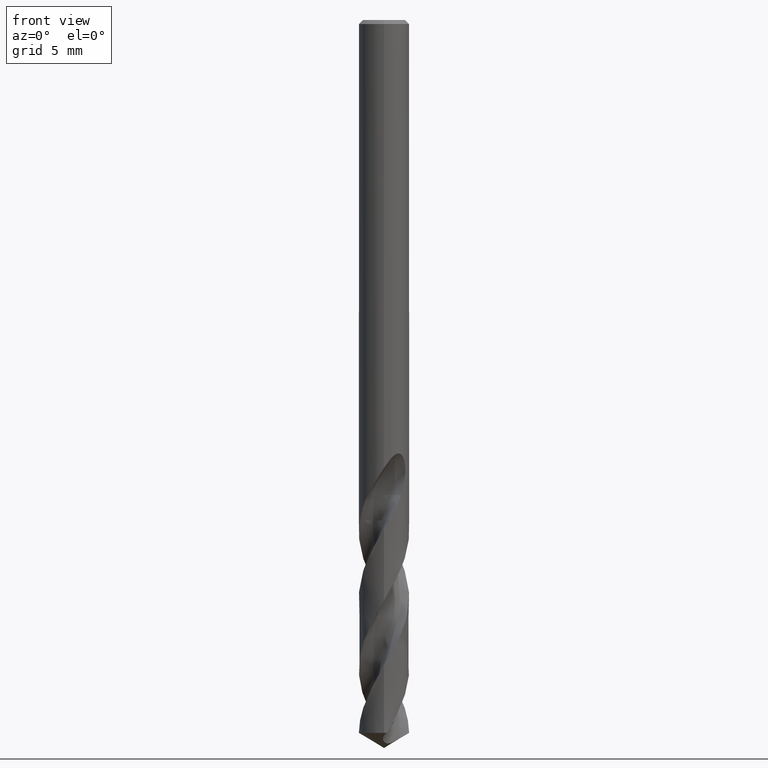
[diagram: clean part render]
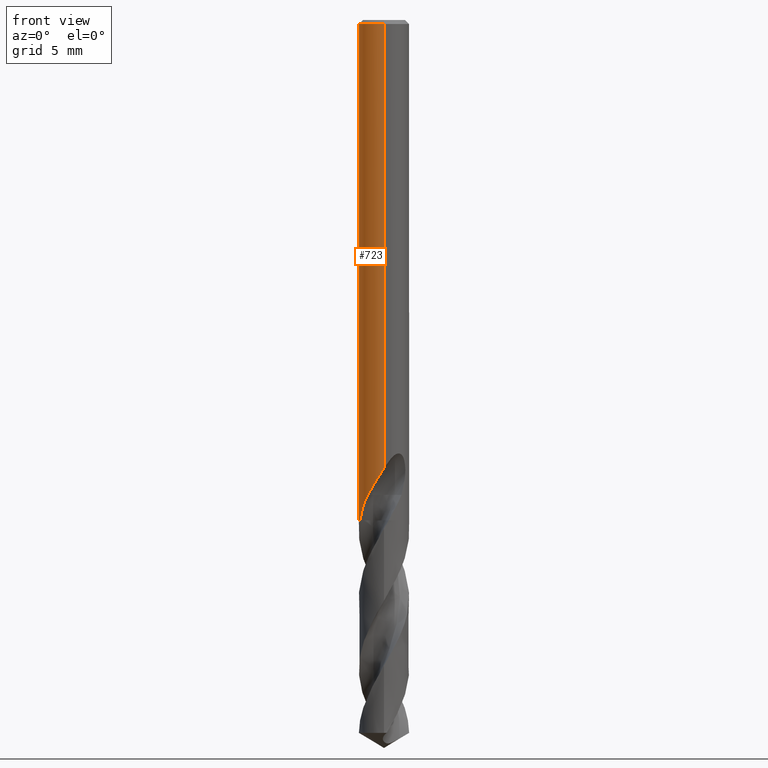
[diagram: same view with one face highlighted and labeled with its STEP entity id]
A machine part, front view. The second image highlights one B-rep face of the part: STEP entity #723.
In plain terms, the highlighted cylindrical surface (edge-blend (fillet) strip) has radius 1.9 mm, axis along (-0, -0, 1).
Its self-contained STEP definition (entity closure, byte-faithful):
#287=VERTEX_POINT('',#802);
#291=EDGE_CURVE('',#637,#747,#806,.T.);
#313=EDGE_CURVE('',#317,#637,#832,.T.);
#317=VERTEX_POINT('',#836);
#331=EDGE_CURVE('',#317,#605,#852,.T.);
#361=EDGE_CURVE('',#757,#449,#885,.T.);
#391=EDGE_CURVE('',#747,#757,#918,.T.);
#393=VERTEX_POINT('',#920);
#425=EDGE_CURVE('',#449,#651,#953,.T.);
#439=EDGE_CURVE('',#693,#597,#969,.T.);
#449=VERTEX_POINT('',#981);
#455=EDGE_CURVE('',#567,#563,#987,.T.);
#485=EDGE_CURVE('',#489,#605,#1018,.T.);
#489=VERTEX_POINT('',#1022);
#505=EDGE_CURVE('',#599,#287,#1043,.T.);
#511=EDGE_CURVE('',#651,#599,#1051,.T.);
#513=EDGE_CURVE('',#683,#693,#1053,.T.);
#531=EDGE_CURVE('',#597,#393,#1072,.T.);
#563=VERTEX_POINT('',#1105);
#567=VERTEX_POINT('',#1110);
#579=VERTEX_POINT('',#1124);
#597=VERTEX_POINT('',#1144);
#599=VERTEX_POINT('',#1146);
#605=VERTEX_POINT('',#1153);
#637=VERTEX_POINT('',#1189);
#651=VERTEX_POINT('',#1205);
#683=VERTEX_POINT('',#1237);
#687=EDGE_CURVE('',#287,#579,#1242,.T.);
#693=VERTEX_POINT('',#1249);
#697=EDGE_CURVE('',#393,#489,#1253,.T.);
#723=ADVANCED_FACE('',(#1280),#1281,.T.);
#737=EDGE_CURVE('',#563,#683,#1295,.T.);
#747=VERTEX_POINT('',#1305);
#757=VERTEX_POINT('',#1316);
#767=EDGE_CURVE('',#579,#567,#1327,.T.);
#802=CARTESIAN_POINT('',(-0.562333990228013,1.81487753951451,-23.3171221986971));
#806=B_SPLINE_CURVE_WITH_KNOTS('',3,(#1364,#1365,#1366,#1367,#1368,#1369,#1370,#1371,#1372,#1373,#1374,#1375,#1376,#1377,#1378,#1379,#1380,#1381,#1382,#1383,#1384,#1385,#1386,#1387,#1388,#1389,#1390,#1391),.UNSPECIFIED.,.F.,.F.,(4,2,2,2,2,2,2,2,2,2,2,2,2,4),(0.0,0.930896725868809,1.43918709684327,1.89957042393618,2.43442537099134,3.07690815496934,3.63375908794898,3.88610448691811,4.0705382262428,4.2450664905385,4.46646600120747,4.79038246894414,5.25086781089681,5.77450983232083),.UNSPECIFIED.);
#832=B_SPLINE_CURVE_WITH_KNOTS('',3,(#2037,#2038,#2039,#2040,#2041,#2042,#2043,#2044),.UNSPECIFIED.,.F.,.F.,(4,2,2,4),(0.0,1.30385603521237,2.26941360860562,3.92841264680964),.UNSPECIFIED.);
#836=CARTESIAN_POINT('',(-1.83032600056677,-0.509810486013441,-37.8));
#852=CIRCLE('',#2180,1.9);
#885=CIRCLE('',#2342,1.9);
#918=LINE('',#2411,#2412);
#920=CARTESIAN_POINT('',(-1.54592011029632,1.10459540673562,-34.8373975703887));
#953=LINE('',#3045,#3046);
#969=LINE('',#3066,#3067);
#981=CARTESIAN_POINT('',(0.0,1.9,-0.300000000000001));
#987=LINE('',#3125,#3126);
#1018=B_SPLINE_CURVE_WITH_KNOTS('',3,(#3327,#3328,#3329,#3330,#3331,#3332,#3333,#3334),.UNSPECIFIED.,.F.,.F.,(4,2,2,4),(0.0,0.4862241962314,0.933529852788994,2.02744134513229),.UNSPECIFIED.);
#1022=CARTESIAN_POINT('',(-1.32064695167187,1.36597643795191,-35.8778));
#1043=B_SPLINE_CURVE_WITH_KNOTS('',3,(#3767,#3768,#3769,#3770,#3771,#3772,#3773,#3774,#3775,#3776,#3777,#3778,#3779,#3780,#3781,#3782,#3783,#3784,#3785,#3786,#3787,#3788,#3789,#3790,#3791,#3792,#3793),.UNSPECIFIED.,.F.,.F.,(4,2,3,2,2,2,2,2,2,2,2,2,4),(-0.549097402110366,-0.274548701055183,0.0,0.274548701055183,0.549097402110365,0.827390658279231,1.1056839144481,1.37693201723175,1.64818012001541,1.92148865262143,2.19479718522745,2.46810571783348,2.7414142504395),.UNSPECIFIED.);
#1051=B_SPLINE_CURVE_WITH_KNOTS('',3,(#4208,#4209,#4210,#4211,#4212,#4213,#4214,#4215,#4216,#4217,#4218,#4219,#4220,#4221,#4222,#4223,#4224,#4225,#4226,#4227,#4228,#4229,#4230,#4231,#4232,#4233,#4234),.UNSPECIFIED.,.F.,.F.,(4,2,3,2,2,2,2,2,2,2,2,2,4),(-0.549097402110366,-0.274548701055183,0.0,0.274548701055183,0.549097402110365,0.827390658279231,1.1056839144481,1.37693201723175,1.64818012001541,1.92148865262143,2.19479718522745,2.46810571783348,2.7414142504395),.UNSPECIFIED.);
#1053=B_SPLINE_CURVE_WITH_KNOTS('',3,(#4237,#4238,#4239,#4240,#4241,#4242,#4243,#4244,#4245,#4246,#4247,#4248,#4249,#4250),.UNSPECIFIED.,.F.,.F.,(4,2,2,2,2,2,4),(6.40705677458947,6.75384675428594,7.08293395514204,7.41202115599814,7.74110835685424,8.07019555771033,8.394801163274),.UNSPECIFIED.);
#1072=B_SPLINE_CURVE_WITH_KNOTS('',3,(#4301,#4302,#4303,#4304,#4305,#4306,#4307,#4308,#4309,#4310,#4311,#4312,#4313,#4314,#4315,#4316,#4317,#4318,#4319,#4320,#4321,#4322,#4323,#4324,#4325,#4326,#4327,#4328),.UNSPECIFIED.,.F.,.F.,(4,2,2,2,2,2,2,2,2,2,2,2,2,4),(0.0,0.930896725868812,1.43918709684323,1.8995704239361,2.43442537099121,3.07690815496917,3.63375908794876,3.88610448691797,4.07053822624273,4.2450664905385,4.46646600120753,4.79038246894432,5.25086781089762,5.77450983232273),.UNSPECIFIED.);
#1105=CARTESIAN_POINT('',(-1.46310310737324E-015,1.9,-24.7128911336578));
#1110=CARTESIAN_POINT('',(0.0,1.9,-24.5000801551881));
#1124=CARTESIAN_POINT('',(-1.0350734039088,1.59330569838956,-23.3171221986971));
#1144=CARTESIAN_POINT('',(-5.63221455693493E-013,1.9,-33.8581361608634));
#1146=CARTESIAN_POINT('',(-0.486378944383046,1.83669146087764,-23.6432837483006));
#1153=CARTESIAN_POINT('',(-0.35339459976422,1.86684553642166,-37.8));
#1189=CARTESIAN_POINT('',(-1.21071203354284,-1.46430064257124,-35.8778));
#1205=CARTESIAN_POINT('',(-2.60338784749601E-016,1.9,-24.0232688117743));
#1237=CARTESIAN_POINT('',(-1.337052752443,1.34992219671528,-25.3720803908795));
#1242=CIRCLE('',#6527,1.9);
#1249=CARTESIAN_POINT('',(-1.44945831354929E-017,1.9,-26.0310253601033));
#1253=B_SPLINE_CURVE_WITH_KNOTS('',3,(#6946,#6947,#6948,#6949),.UNSPECIFIED.,.F.,.F.,(4,4),(0.0,1.09196780730593),.UNSPECIFIED.);
#1280=FACE_OUTER_BOUND('',#7012,.T.);
#1281=CYLINDRICAL_SURFACE('',#7013,1.9);
#1295=ELLIPSE('',#7031,2.11836402088143,1.9);
#1305=CARTESIAN_POINT('',(5.6355452260088E-013,-1.9,-33.8581361608634));
#1316=CARTESIAN_POINT('',(2.32675207226252E-016,-1.9,-0.300000000000001));
#1327=B_SPLINE_CURVE_WITH_KNOTS('',3,(#7203,#7204,#7205,#7206,#7207,#7208,#7209,#7210,#7211,#7212,#7213,#7214,#7215,#7216,#7217,#7218,#7219,#7220,#7221,#7222),.UNSPECIFIED.,.F.,.F.,(4,2,2,2,2,2,2,2,2,4),(3.47070982957983,3.70059776713904,3.93048570469824,4.16037364225744,4.62014951737584,5.07145175045712,5.29710286699776,5.52275398353839,5.75855614826625,5.99435831299411),.UNSPECIFIED.);
#1364=CARTESIAN_POINT('',(-1.21071203354284,-1.46430064257124,-35.8778));
#1365=CARTESIAN_POINT('',(-1.0853808733013,-1.56792686485841,-35.6135290802612));
#1366=CARTESIAN_POINT('',(-0.941278308818906,-1.66004339814314,-35.36714351895));
#1367=CARTESIAN_POINT('',(-0.690006337884158,-1.77295146389738,-34.9555394209279));
#1368=CARTESIAN_POINT('',(-0.599587009473506,-1.80543079791102,-34.810723447385));
#1369=CARTESIAN_POINT('',(-0.424546600169902,-1.85397230287446,-34.5303971486895));
#1370=CARTESIAN_POINT('',(-0.340707086095919,-1.87112190445772,-34.3961934997419));
#1371=CARTESIAN_POINT('',(-0.159229834318965,-1.89587303984936,-34.1069488917868));
#1372=CARTESIAN_POINT('',(-0.0600762303288743,-1.90168393949035,-33.9496438769895));
#1373=CARTESIAN_POINT('',(0.160118456058105,-1.89705228779978,-33.6131166077026));
#1374=CARTESIAN_POINT('',(0.290671617676792,-1.88272651539859,-33.421628927856));
#1375=CARTESIAN_POINT('',(0.542426530797424,-1.82487212056621,-33.1058789172795));
#1376=CARTESIAN_POINT('',(0.681712501963189,-1.78079434988088,-32.951805206737));
#1377=CARTESIAN_POINT('',(0.892520378424017,-1.67890993681827,-32.8075307994537));
#1378=CARTESIAN_POINT('',(0.96229911801962,-1.64044626239386,-32.7718748476525));
#1379=CARTESIAN_POINT('',(1.08456752146185,-1.56124860066155,-32.7444846669144));
#1380=CARTESIAN_POINT('',(1.13471666348301,-1.5251813870785,-32.7439732162605));
#1381=CARTESIAN_POINT('',(1.22812215179518,-1.45089044992675,-32.767945289558));
#1382=CARTESIAN_POINT('',(1.26897305300971,-1.41500940735062,-32.7904212478785));
#1383=CARTESIAN_POINT('',(1.35210418437972,-1.33637889976646,-32.8607459460686));
#1384=CARTESIAN_POINT('',(1.39056440872162,-1.29563059277343,-32.9126680904723));
#1385=CARTESIAN_POINT('',(1.46934338524981,-1.20665367368141,-33.054847054154));
#1386=CARTESIAN_POINT('',(1.50699816538277,-1.15819937106817,-33.1603018334784));
#1387=CARTESIAN_POINT('',(1.57780658952891,-1.06090372748162,-33.4553525677251));
#1388=CARTESIAN_POINT('',(1.60340547576235,-1.01946044813557,-33.6654837368289));
#1389=CARTESIAN_POINT('',(1.61977323562939,-0.993279704172422,-34.1678680838827));
#1390=CARTESIAN_POINT('',(1.60817560749201,-1.01746664945086,-34.4833068082755));
#1391=CARTESIAN_POINT('',(1.54592011029632,-1.10459540673561,-34.8373975703887));
#2037=CARTESIAN_POINT('',(-1.83032600056676,-0.509810486013441,-37.8));
#2038=CARTESIAN_POINT('',(-1.77205415854653,-0.719018555436586,-37.423529852799));
#2039=CARTESIAN_POINT('',(-1.68683808537791,-0.887829493786616,-37.1098006372953));
#2040=CARTESIAN_POINT('',(-1.54341905935712,-1.11392768999328,-36.6327647913459));
#2041=CARTESIAN_POINT('',(-1.48961362873666,-1.18083139570048,-36.4596483001508));
#2042=CARTESIAN_POINT('',(-1.38877811686685,-1.30041203939709,-36.1856781877291));
#2043=CARTESIAN_POINT('',(-1.3103128756953,-1.38194874389746,-36.0284764723504));
#2044=CARTESIAN_POINT('',(-1.21071203354284,-1.46430064257124,-35.8778));
#2180=AXIS2_PLACEMENT_3D('',#7285,#7286,#7287);
#2342=AXIS2_PLACEMENT_3D('',#7333,#7334,#7335);
#2411=CARTESIAN_POINT('',(2.32675207226252E-016,-1.9,-32.9));
#2412=VECTOR('',#7370,1.0);
#3045=CARTESIAN_POINT('',(-2.32675207226252E-016,1.9,-32.9));
#3046=VECTOR('',#7382,1.0);
#3066=CARTESIAN_POINT('',(-2.32675207226252E-016,1.9,-32.9));
#3067=VECTOR('',#7404,1.0);
#3125=CARTESIAN_POINT('',(-2.32675207226252E-016,1.9,-32.9));
#3126=VECTOR('',#7423,1.0);
#3327=CARTESIAN_POINT('',(-1.32064695167187,1.36597643795191,-35.8778));
#3328=CARTESIAN_POINT('',(-1.26541319141828,1.41937728373637,-36.0205087950185));
#3329=CARTESIAN_POINT('',(-1.20572662188453,1.47087521716798,-36.162501428871));
#3330=CARTESIAN_POINT('',(-1.07477892226321,1.56875320026051,-36.4417115320769));
#3331=CARTESIAN_POINT('',(-1.00871331921797,1.61233955610013,-36.5737704974233));
#3332=CARTESIAN_POINT('',(-0.755249808180064,1.75565049954433,-37.0770777025118));
#3333=CARTESIAN_POINT('',(-0.558823715376891,1.82795772343687,-37.4375719386837));
#3334=CARTESIAN_POINT('',(-0.35339459976425,1.86684553642166,-37.8));
#3767=CARTESIAN_POINT('',(0.666833593881052,1.77913826277546,-22.815314810961));
#3768=CARTESIAN_POINT('',(0.729156436544056,1.75577922091605,-22.8781275443334));
#3769=CARTESIAN_POINT('',(0.783736551744207,1.7313004169092,-22.9576861473125));
#3770=CARTESIAN_POINT('',(0.856885769825975,1.6962874226608,-23.1336179658344));
#3771=CARTESIAN_POINT('',(0.875400981188567,1.68631940098372,-23.2301257789017));
#3772=CARTESIAN_POINT('',(0.875400981188567,1.68631940098372,-23.3216420125868));
#3773=CARTESIAN_POINT('',(0.875400981188567,1.68631940098372,-23.4131582462718));
#3774=CARTESIAN_POINT('',(0.856885769825974,1.6962874226608,-23.5096660593391));
#3775=CARTESIAN_POINT('',(0.783736551744204,1.7313004169092,-23.685597877861));
#3776=CARTESIAN_POINT('',(0.729156436544057,1.75577922091605,-23.7651564808402));
#3777=CARTESIAN_POINT('',(0.603660733285726,1.8028158973629,-23.8916386471106));
#3778=CARTESIAN_POINT('',(0.523577862471086,1.82870417591542,-23.9471807096717));
#3779=CARTESIAN_POINT('',(0.346284885324924,1.87039555239642,-24.021654283086));
#3780=CARTESIAN_POINT('',(0.248975484923823,1.88589937305466,-24.0405166027747));
#3781=CARTESIAN_POINT('',(0.0664176989110847,1.90099020211123,-24.0405166027747));
#3782=CARTESIAN_POINT('',(-0.0297945902976769,1.9018278025641,-24.0225029728444));
#3783=CARTESIAN_POINT('',(-0.206502322805989,1.89081820897688,-23.9494411360825));
#3784=CARTESIAN_POINT('',(-0.287028841281158,1.87930641775675,-23.8944179367881));
#3785=CARTESIAN_POINT('',(-0.414569437604323,1.85536359392417,-23.7674957530888));
#3786=CARTESIAN_POINT('',(-0.470086990040862,1.84132785703124,-23.6868331760455));
#3787=CARTESIAN_POINT('',(-0.543989558938117,1.82086393925848,-23.5094883203028));
#3788=CARTESIAN_POINT('',(-0.562348199187247,1.81487313685306,-23.4127448567888));
#3789=CARTESIAN_POINT('',(-0.562348199187247,1.81487313685306,-23.2305391683848));
#3790=CARTESIAN_POINT('',(-0.543989558938117,1.82086393925848,-23.1337957048708));
#3791=CARTESIAN_POINT('',(-0.470086990040862,1.84132785703124,-22.9564508491281));
#3792=CARTESIAN_POINT('',(-0.414569437604324,1.85536359392417,-22.8757882720848));
#3793=CARTESIAN_POINT('',(-0.350557852833463,1.86738030187126,-22.8120870635646));
#4208=CARTESIAN_POINT('',(0.666833593881052,1.77913826277546,-22.815314810961));
#4209=CARTESIAN_POINT('',(0.729156436544056,1.75577922091605,-22.8781275443334));
#4210=CARTESIAN_POINT('',(0.783736551744207,1.7313004169092,-22.9576861473125));
#4211=CARTESIAN_POINT('',(0.856885769825975,1.6962874226608,-23.1336179658344));
#4212=CARTESIAN_POINT('',(0.875400981188567,1.68631940098372,-23.2301257789017));
#4213=CARTESIAN_POINT('',(0.875400981188567,1.68631940098372,-23.3216420125868));
#4214=CARTESIAN_POINT('',(0.875400981188567,1.68631940098372,-23.4131582462718));
#4215=CARTESIAN_POINT('',(0.856885769825974,1.6962874226608,-23.5096660593391));
#4216=CARTESIAN_POINT('',(0.783736551744204,1.7313004169092,-23.685597877861));
#4217=CARTESIAN_POINT('',(0.729156436544057,1.75577922091605,-23.7651564808402));
#4218=CARTESIAN_POINT('',(0.603660733285726,1.8028158973629,-23.8916386471106));
#4219=CARTESIAN_POINT('',(0.523577862471086,1.82870417591542,-23.9471807096717));
#4220=CARTESIAN_POINT('',(0.346284885324924,1.87039555239642,-24.021654283086));
#4221=CARTESIAN_POINT('',(0.248975484923823,1.88589937305466,-24.0405166027747));
#4222=CARTESIAN_POINT('',(0.0664176989110847,1.90099020211123,-24.0405166027747));
#4223=CARTESIAN_POINT('',(-0.0297945902976769,1.9018278025641,-24.0225029728444));
#4224=CARTESIAN_POINT('',(-0.206502322805989,1.89081820897688,-23.9494411360825));
#4225=CARTESIAN_POINT('',(-0.287028841281158,1.87930641775675,-23.8944179367881));
#4226=CARTESIAN_POINT('',(-0.414569437604323,1.85536359392417,-23.7674957530888));
#4227=CARTESIAN_POINT('',(-0.470086990040862,1.84132785703124,-23.6868331760455));
#4228=CARTESIAN_POINT('',(-0.543989558938117,1.82086393925848,-23.5094883203028));
#4229=CARTESIAN_POINT('',(-0.562348199187247,1.81487313685306,-23.4127448567888));
#4230=CARTESIAN_POINT('',(-0.562348199187247,1.81487313685306,-23.2305391683848));
#4231=CARTESIAN_POINT('',(-0.543989558938117,1.82086393925848,-23.1337957048708));
#4232=CARTESIAN_POINT('',(-0.470086990040862,1.84132785703124,-22.9564508491281));
#4233=CARTESIAN_POINT('',(-0.414569437604324,1.85536359392417,-22.8757882720848));
#4234=CARTESIAN_POINT('',(-0.350557852833463,1.86738030187126,-22.8120870635646));
#4237=CARTESIAN_POINT('',(-1.37715452850624,1.30898640352555,-25.3154644794705));
#4238=CARTESIAN_POINT('',(-1.31898553053015,1.370184671221,-25.4014121448593));
#4239=CARTESIAN_POINT('',(-1.25300448248413,1.4311686122456,-25.4810161941255));
#4240=CARTESIAN_POINT('',(-1.11427859633646,1.54137110305681,-25.6201822895238));
#4241=CARTESIAN_POINT('',(-1.03713089292589,1.59502926269044,-25.6854587110489));
#4242=CARTESIAN_POINT('',(-0.866124927176479,1.69398537443821,-25.8031342592088));
#4243=CARTESIAN_POINT('',(-0.772250919425576,1.73925803776903,-25.8555317686663));
#4244=CARTESIAN_POINT('',(-0.572617065535277,1.81480022047995,-25.9414857272752));
#4245=CARTESIAN_POINT('',(-0.466619766295034,1.84512959850856,-25.975117058005));
#4246=CARTESIAN_POINT('',(-0.249338010619285,1.88681419282537,-26.0200207857969));
#4247=CARTESIAN_POINT('',(-0.138045680589051,1.89815082225961,-26.0312723335086));
#4248=CARTESIAN_POINT('',(0.0798276432471297,1.90140347946592,-26.0312723335086));
#4249=CARTESIAN_POINT('',(0.189987648331214,1.89362846342685,-26.0203187293329));
#4250=CARTESIAN_POINT('',(0.297835055379471,1.87651119895062,-25.9982717785655));
#4301=CARTESIAN_POINT('',(1.21071203354284,1.46430064257124,-35.8778));
#4302=CARTESIAN_POINT('',(1.08538087330129,1.56792686485841,-35.6135290802612));
#4303=CARTESIAN_POINT('',(0.941278308818906,1.66004339814314,-35.3671435189501));
#4304=CARTESIAN_POINT('',(0.690006337884163,1.77295146389738,-34.9555394209279));
#4305=CARTESIAN_POINT('',(0.59958700947352,1.80543079791102,-34.810723447385));
#4306=CARTESIAN_POINT('',(0.424546600169888,1.85397230287446,-34.5303971486895));
#4307=CARTESIAN_POINT('',(0.340707086095889,1.87112190445773,-34.3961934997419));
#4308=CARTESIAN_POINT('',(0.159229834318997,1.89587303984936,-34.1069488917869));
#4309=CARTESIAN_POINT('',(0.0600762303288924,1.90168393949035,-33.9496438769896));
#4310=CARTESIAN_POINT('',(-0.160118456058132,1.89705228779978,-33.6131166077025));
#4311=CARTESIAN_POINT('',(-0.290671617676801,1.88272651539859,-33.421628927856));
#4312=CARTESIAN_POINT('',(-0.542426530797416,1.82487212056622,-33.1058789172795));
#4313=CARTESIAN_POINT('',(-0.681712501963187,1.78079434988088,-32.951805206737));
#4314=CARTESIAN_POINT('',(-0.892520378424043,1.67890993681826,-32.8075307994537));
#4315=CARTESIAN_POINT('',(-0.962299118019629,1.64044626239386,-32.7718748476525));
#4316=CARTESIAN_POINT('',(-1.08456752146185,1.56124860066155,-32.7444846669144));
#4317=CARTESIAN_POINT('',(-1.13471666348301,1.5251813870785,-32.7439732162605));
#4318=CARTESIAN_POINT('',(-1.22812215179518,1.45089044992675,-32.7679452895581));
#4319=CARTESIAN_POINT('',(-1.26897305300971,1.41500940735062,-32.7904212478785));
#4320=CARTESIAN_POINT('',(-1.35210418437971,1.33637889976647,-32.8607459460686));
#4321=CARTESIAN_POINT('',(-1.3905644087216,1.29563059277345,-32.9126680904722));
#4322=CARTESIAN_POINT('',(-1.46934338524984,1.20665367368138,-33.0548470541541));
#4323=CARTESIAN_POINT('',(-1.50699816538279,1.15819937106815,-33.1603018334785));
#4324=CARTESIAN_POINT('',(-1.57780658952892,1.0609037274816,-33.4553525677252));
#4325=CARTESIAN_POINT('',(-1.60340547576235,1.01946044813557,-33.665483736829));
#4326=CARTESIAN_POINT('',(-1.61977323562939,0.993279704172418,-34.1678680838828));
#4327=CARTESIAN_POINT('',(-1.60817560749199,1.01746664945089,-34.4833068082756));
#4328=CARTESIAN_POINT('',(-1.54592011029632,1.10459540673562,-34.8373975703887));
#6527=AXIS2_PLACEMENT_3D('',#7658,#7659,#7660);
#6946=CARTESIAN_POINT('',(-1.54592011034894,1.10459540666197,-34.8373975704177));
#6947=CARTESIAN_POINT('',(-1.48466567652095,1.19032314057396,-35.1858037098529));
#6948=CARTESIAN_POINT('',(-1.41083771128063,1.27877862952934,-35.5362831998041));
#6949=CARTESIAN_POINT('',(-1.32064695167187,1.36597643795191,-35.8778));
#7012=EDGE_LOOP('',(#7684,#7685,#7686,#7687,#7688,#7689,#7690,#7691,#7692,#7693,#7694,#7695,#7696,#7697,#7698,#7699,#7700));
#7013=AXIS2_PLACEMENT_3D('',#7701,#7702,#7703);
#7031=AXIS2_PLACEMENT_3D('',#7708,#7709,#7710);
#7203=CARTESIAN_POINT('',(-1.01202808664651,1.60804202427629,-23.0937511433392));
#7204=CARTESIAN_POINT('',(-1.02755073957768,1.59827277698604,-23.1711796645926));
#7205=CARTESIAN_POINT('',(-1.03510901790186,1.59328256158732,-23.2496725482131));
#7206=CARTESIAN_POINT('',(-1.03510901790186,1.59328256158732,-23.4029311732525));
#7207=CARTESIAN_POINT('',(-1.02755073957768,1.59827277698604,-23.4814240568729));
#7208=CARTESIAN_POINT('',(-0.99650543371535,1.61781127156655,-23.6362810993798));
#7209=CARTESIAN_POINT('',(-0.973033303062465,1.63231533575299,-23.7126538197772));
#7210=CARTESIAN_POINT('',(-0.8810431243283,1.68485925898399,-23.9310931839592));
#7211=CARTESIAN_POINT('',(-0.789862081808892,1.73169891355079,-24.0624972744073));
#7212=CARTESIAN_POINT('',(-0.58186540890856,1.81207985951601,-24.2686660045328));
#7213=CARTESIAN_POINT('',(-0.450901682879366,1.85155275973536,-24.3586006352166));
#7214=CARTESIAN_POINT('',(-0.233526949715558,1.88702282861241,-24.4489206882155));
#7215=CARTESIAN_POINT('',(-0.157613368122847,1.89500392500386,-24.471890296722));
#7216=CARTESIAN_POINT('',(-0.00436634801449107,1.90154221215292,-24.502118148478));
#7217=CARTESIAN_POINT('',(0.0729691222223885,1.90008765853973,-24.5093686300866));
#7218=CARTESIAN_POINT('',(0.226319788269594,1.88810948487366,-24.5093686300866));
#7219=CARTESIAN_POINT('',(0.306195708436408,1.87687251005927,-24.5014646178846));
#7220=CARTESIAN_POINT('',(0.462960121132224,1.84447124050189,-24.4694642568361));
#7221=CARTESIAN_POINT('',(0.539854030265367,1.82331717600411,-24.4453840877064));
#7222=CARTESIAN_POINT('',(0.612733219360366,1.79848769856574,-24.4142498122359));
#7285=CARTESIAN_POINT('',(0.0,0.0,-37.8));
#7286=DIRECTION('',(0.0,0.0,-1.0));
#7287=DIRECTION('',(0.0,1.0,0.0));
#7333=CARTESIAN_POINT('',(0.0,0.0,-0.300000000000001));
#7334=DIRECTION('',(0.0,0.0,-1.0));
#7335=DIRECTION('',(0.0,1.0,0.0));
#7370=DIRECTION('',(-0.0,-0.0,1.0));
#7382=DIRECTION('',(0.0,0.0,-1.0));
#7404=DIRECTION('',(0.0,0.0,-1.0));
#7423=DIRECTION('',(0.0,0.0,-1.0));
#7658=CARTESIAN_POINT('',(0.0,0.0,-23.3171221986971));
#7659=DIRECTION('',(0.0,-0.0,1.0));
#7660=DIRECTION('',(0.0,1.0,0.0));
#7684=ORIENTED_EDGE('',*,*,#425,.T.);
#7685=ORIENTED_EDGE('',*,*,#511,.T.);
#7686=ORIENTED_EDGE('',*,*,#505,.T.);
#7687=ORIENTED_EDGE('',*,*,#687,.T.);
#7688=ORIENTED_EDGE('',*,*,#767,.T.);
#7689=ORIENTED_EDGE('',*,*,#455,.T.);
#7690=ORIENTED_EDGE('',*,*,#737,.T.);
#7691=ORIENTED_EDGE('',*,*,#513,.T.);
#7692=ORIENTED_EDGE('',*,*,#439,.T.);
#7693=ORIENTED_EDGE('',*,*,#531,.T.);
#7694=ORIENTED_EDGE('',*,*,#697,.T.);
#7695=ORIENTED_EDGE('',*,*,#485,.T.);
#7696=ORIENTED_EDGE('',*,*,#331,.F.);
#7697=ORIENTED_EDGE('',*,*,#313,.T.);
#7698=ORIENTED_EDGE('',*,*,#291,.T.);
#7699=ORIENTED_EDGE('',*,*,#391,.T.);
#7700=ORIENTED_EDGE('',*,*,#361,.T.);
#7701=CARTESIAN_POINT('',(0.0,0.0,-32.9));
#7702=DIRECTION('',(-0.0,-0.0,1.0));
#7703=DIRECTION('',(0.0,1.0,0.0));
#7708=CARTESIAN_POINT('',(0.0,0.0,-24.7128911336578));
#7709=DIRECTION('',(-0.442195774284071,0.0,0.896918556617774));
#7710=DIRECTION('',(0.896918556617774,-0.0,0.442195774284071));